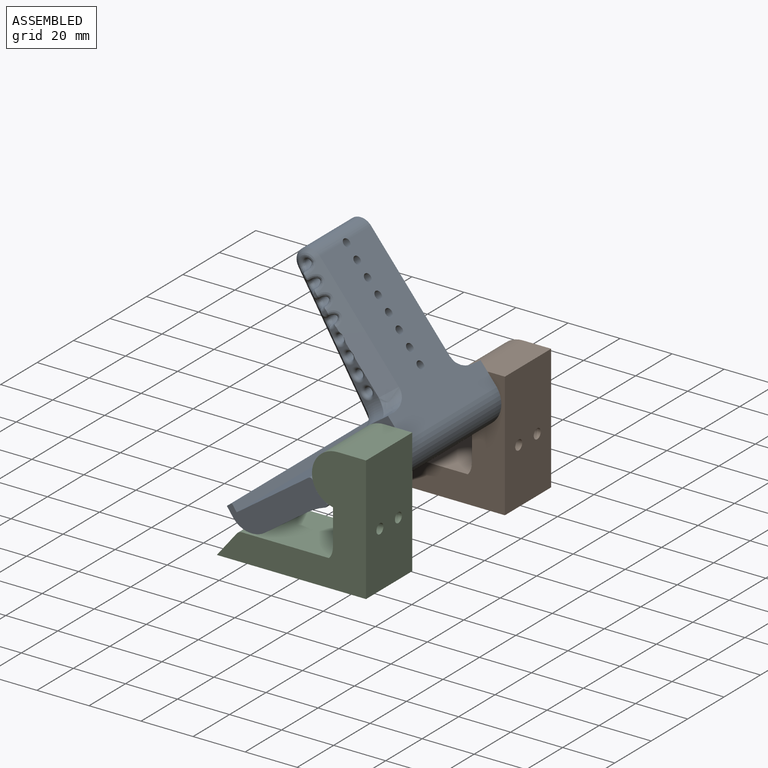
[diagram: assembled view]
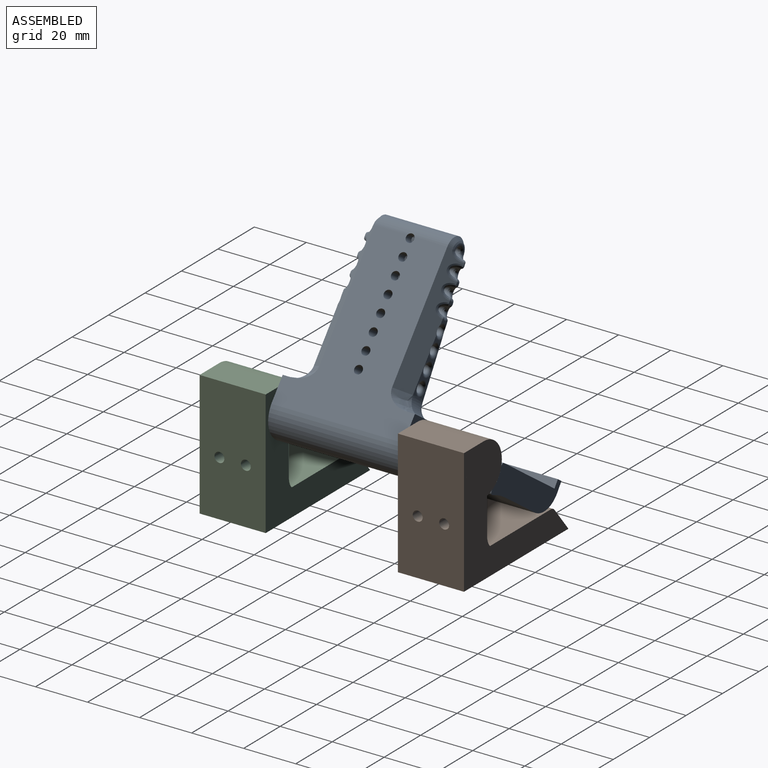
[diagram: assembled view, second angle]
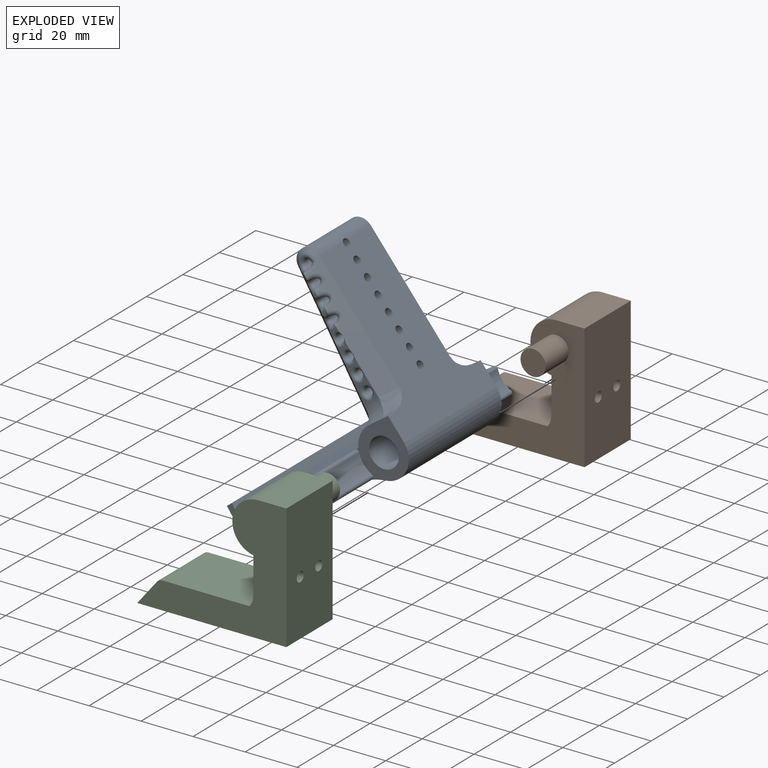
[diagram: exploded view]
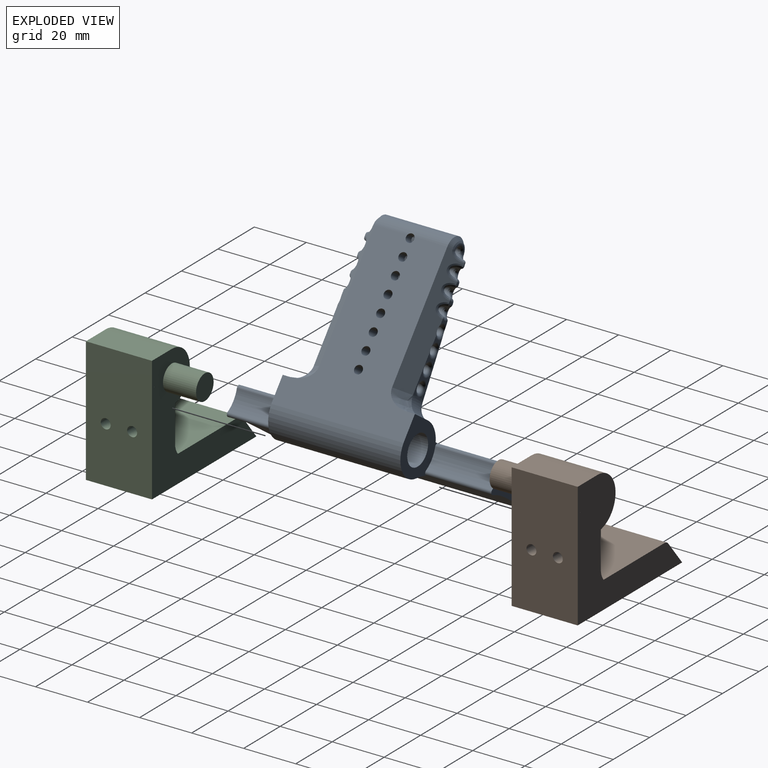
[diagram: exploded view, second angle]
ASSEMBLY  parts=3 mates=2
PART A: 124 faces, bbox 63.6x80.5x104 mm
  f0: plane 101.6x20.06mm, normal (0,-1,0), area 2037.7mm2, adj f2,f7,f33,f119
  f1: plane 66.22x53.17mm, normal (1,0.07,0), area 1975mm2, adj f3,f5,f28,f35,f39,f40,f41,f42
  f2: plane 37.74x14mm, normal (0,0,1), area 350.8mm2, adj f0,f29,f30,f31,f32,f33,f114,f115
  f3: cylinder r=9.53mm len=50.8mm, axis (0,0,-1), area 1014mm2, adj f1,f113,f117,f119
  f4: cylinder r=5.71mm len=50.8mm, axis (0,0,-1), area 1824.1mm2, adj f113,f117
  f5: plane 2.9x2.89mm, normal (0,1,0), area 4.2mm2, adj f1,f100,f117
  f6: cylinder r=9.91mm len=7.33mm, axis (0,0,-1), area 24.1mm2, adj f29,f98,f117
  f7: plane 37.74x14mm, normal (0,0,-1), area 350.8mm2, adj f0,f29,f30,f31,f32,f33,f110,f111
  f8: plane 4.35x2.65mm, normal (0,0,1), area 5mm2, adj f50,f52,f92,f93
  f9: plane 3.38x1.72mm, normal (0,0,1), area 3.1mm2, adj f50,f52,f63,f64,f66,f93
  f10: plane 14.53x6.91mm, normal (0,0,-1), area 26.9mm2, adj f47,f49,f94,f95,f96,f105,f108
  f11: plane 4.35x2.65mm, normal (0,0,-1), area 5mm2, adj f47,f49,f96,f97
  f12: plane 14.53x6.91mm, normal (0,0,1), area 26.9mm2, adj f50,f52,f90,f91,f92,f99,f102
  f13: plane 2.37x1.15mm, normal (0,0,1), area 1.8mm2, adj f50,f52,f63,f65,f66,f71,f72,f74
  f14: plane 1.43x0.82mm, normal (0,0,1), area 1mm2, adj f50,f52,f71,f73,f74,f78,f79
  f15: plane 2.24x0.64mm, normal (0,0,-1), area 0.8mm2, adj f47,f49,f57,f58,f75,f77
  f16: plane 1.43x0.82mm, normal (0,0,-1), area 1mm2, adj f47,f49,f67,f68,f70,f75,f76
  f17: plane 2.37x1.15mm, normal (0,0,-1), area 1.8mm2, adj f47,f49,f59,f60,f62,f67,f69,f70
  f18: plane 47.32x27.94mm, normal (-1,0.08,0), area 1133.4mm2, adj f28,f47,f50,f81,f83,f84,f85,f86
  f19: cylinder r=1.59mm len=17.46mm, axis (0,0,-1), area 142.6mm2, adj f38,f39,f53,f54,f55
  f20: cylinder r=1.59mm len=17.46mm, axis (0,0,-1), area 142.6mm2, adj f38,f39,f56,f57,f58
  f21: cylinder r=1.59mm len=35.56mm, axis (0,0,-1), area 297mm2, adj f46,f75,f76,f77,f78,f79,f80
  f22: cylinder r=1.59mm len=35.56mm, axis (0,0,-1), area 305.8mm2, adj f45,f67,f68,f69,f70,f71,f72,f73
  f23: cylinder r=1.59mm len=35.56mm, axis (0,0,-1), area 313.9mm2, adj f44,f59,f60,f61,f62,f63,f64,f65
  f24: cylinder r=1.59mm len=35.56mm, axis (0,0,-1), area 336.5mm2, adj f43,f93,f97
  f25: cylinder r=1.59mm len=35.56mm, axis (0,0,-1), area 336.7mm2, adj f42,f92,f96
  f26: cylinder r=1.59mm len=35.56mm, axis (0,0,-1), area 336.9mm2, adj f41,f91,f95
  f27: cylinder r=1.59mm len=35.56mm, axis (0,0,-1), area 334.4mm2, adj f40,f90,f94
  f28: cylinder r=5.08mm len=27.94mm, axis (0,0,-1), area 404.8mm2, adj f1,f18,f39,f48,f51,f82
  f29: plane 101.95x35.75mm, normal (0,1,0), area 3297.5mm2, adj f2,f6,f7,f30,f34,f47,f50,f98
  f30: plane 101.6x3.18mm, normal (1,0,0), area 322.6mm2, adj f2,f7,f29,f31
  f31: plane 101.6x2.39mm, normal (0,1,0), area 242.6mm2, adj f2,f7,f30,f32
  f32: plane 101.6x3.94mm, normal (-1,0,0), area 400mm2, adj f2,f7,f31,f33
  f33: cylinder r=8.89mm len=101.6mm, axis (0,0,-1), area 1418.8mm2, adj f0,f2,f7,f32
  f34: cylinder r=9.91mm len=7.33mm, axis (0,0,-1), area 24.1mm2, adj f29,f109,f113
  f35: plane 2.9x2.89mm, normal (0,1,0), area 4.2mm2, adj f1,f104,f113
  f36: plane 3.38x1.72mm, normal (0,0,-1), area 3.1mm2, adj f47,f49,f59,f61,f62,f97
  f37: plane 2.24x0.64mm, normal (0,0,1), area 0.8mm2, adj f50,f52,f53,f55,f79,f80
  f38: cylinder r=1.59mm len=4.04mm, axis (-1,0.08,0), area 27mm2, adj f19,f20,f81,f82
  f39: cylinder r=1.59mm len=5.59mm, axis (-1,0.08,0), area 41.2mm2, adj f1,f19,f20,f28
  f40: cylinder r=1.59mm len=15.41mm, axis (-1,0.08,0), area 132mm2, adj f1,f27,f89
  f41: cylinder r=1.59mm len=14.49mm, axis (-1,0.08,0), area 122.8mm2, adj f1,f26,f88
  f42: cylinder r=1.59mm len=13.56mm, axis (-1,0.08,0), area 113.6mm2, adj f1,f25,f87
  f43: cylinder r=1.59mm len=12.63mm, axis (-1,0.08,0), area 104.3mm2, adj f1,f24,f86
  f44: cylinder r=1.59mm len=11.71mm, axis (-1,0.08,0), area 95.1mm2, adj f1,f23,f85
  f45: cylinder r=1.59mm len=10.78mm, axis (-1,0.08,0), area 86mm2, adj f1,f22,f84
  f46: cylinder r=1.59mm len=9.85mm, axis (-1,0.08,0), area 76.4mm2, adj f1,f21,f83
  f47: plane 59.06x21.11mm, normal (-0.71,0.05,-0.71), area 347.3mm2, adj f10,f11,f15,f16,f17,f18,f29,f36
  f48: bspline ~10.13x5.13mm, area 24.8mm2, adj f28,f47,f49,f56
  f49: bspline ~64.07x9.57mm, area 275.2mm2, adj f1,f10,f11,f15,f16,f17,f36,f48
  f50: plane 59.06x21.11mm, normal (-0.71,0.05,0.71), area 347.3mm2, adj f8,f9,f12,f13,f14,f18,f29,f37
  f51: bspline ~10.13x5.13mm, area 24.8mm2, adj f28,f50,f52,f54
  f52: bspline ~64.07x9.57mm, area 275.2mm2, adj f1,f8,f9,f12,f13,f14,f37,f51
  f53: bspline ~4.83x4.24mm, area 12mm2, adj f19,f37,f50,f54,f55
  f54: bspline ~7.51x3.77mm, area 22.2mm2, adj f19,f51,f53,f55
  f55: bspline ~5.4x4.57mm, area 12mm2, adj f19,f37,f52,f53,f54
  f56: bspline ~7.51x3.77mm, area 22.2mm2, adj f20,f48,f57,f58
  f57: bspline ~4.96x4.32mm, area 12mm2, adj f15,f20,f47,f56,f58
  f58: bspline ~5.4x4.57mm, area 12mm2, adj f15,f20,f49,f56,f57
  f59: bspline ~5.6x3.58mm, area 17.3mm2, adj f17,f23,f36,f47,f60,f61
  f60: torus R=2.86mm, axis (0,0,1), area 3.2mm2, adj f17,f23,f59,f62
  f61: torus R=2.86mm, axis (0,0,1), area 4.3mm2, adj f23,f36,f59,f62
  f62: bspline ~5.72x3.8mm, area 17.9mm2, adj f17,f23,f36,f49,f60,f61
  f63: bspline ~5.6x3.58mm, area 17.3mm2, adj f9,f13,f23,f50,f64,f65
  f64: torus R=2.86mm, axis (0,0,1), area 4.3mm2, adj f9,f23,f63,f66
  f65: torus R=2.86mm, axis (0,0,1), area 3.2mm2, adj f13,f23,f63,f66
  f66: bspline ~5.71x3.82mm, area 17.9mm2, adj f9,f13,f23,f52,f64,f65
  f67: bspline ~5.7x3.85mm, area 19.8mm2, adj f16,f17,f22,f47,f68,f69
  f68: torus R=2.86mm, axis (0,0,1), area 1.8mm2, adj f16,f22,f67,f70
  f69: torus R=2.86mm, axis (0,0,1), area 3mm2, adj f17,f22,f67,f70
  f70: bspline ~5.73x4.34mm, area 20.2mm2, adj f16,f17,f22,f49,f68,f69
  f71: bspline ~5.7x3.85mm, area 19.8mm2, adj f13,f14,f22,f50,f72,f73
  f72: torus R=2.86mm, axis (0,0,1), area 3mm2, adj f13,f22,f71,f74
  f73: torus R=2.86mm, axis (0,0,1), area 1.8mm2, adj f14,f22,f71,f74
  f74: bspline ~5.73x4.34mm, area 20.2mm2, adj f13,f14,f22,f52,f72,f73
  f75: bspline ~5.71x4.42mm, area 22.2mm2, adj f15,f16,f21,f47,f76,f77
  f76: torus R=2.86mm, axis (0,0,1), area 1.7mm2, adj f16,f21,f75,f77
  f77: bspline ~5.73x5mm, area 22.1mm2, adj f15,f21,f49,f75,f76
  f78: torus R=2.86mm, axis (0,0,1), area 1.7mm2, adj f14,f21,f79,f80
  f79: bspline ~5.71x4.42mm, area 22.2mm2, adj f14,f21,f37,f50,f78,f80
  f80: bspline ~5.72x5mm, area 22.1mm2, adj f21,f37,f52,f78,f79
  f81: torus R=2.86mm, axis (1,-0.08,0), area 12.8mm2, adj f18,f38,f82
  f82: bspline ~5.72x4.41mm, area 18.6mm2, adj f28,f38,f81
  f83: torus R=2.86mm, axis (1,-0.08,0), area 25.7mm2, adj f18,f46
  f84: torus R=2.86mm, axis (1,-0.08,0), area 25.7mm2, adj f18,f45
  f85: torus R=2.86mm, axis (1,-0.08,0), area 25.7mm2, adj f18,f44
  f86: torus R=2.86mm, axis (1,-0.08,0), area 25.7mm2, adj f18,f43
  f87: torus R=2.86mm, axis (1,-0.08,0), area 25.7mm2, adj f18,f42
  f88: torus R=2.86mm, axis (1,-0.08,0), area 25.7mm2, adj f18,f41
  f89: torus R=2.86mm, axis (1,-0.08,0), area 25.7mm2, adj f18,f40
  f90: torus R=2.86mm, axis (0,0,1), area 25.7mm2, adj f12,f27,f101,f103
  f91: torus R=2.86mm, axis (0,0,1), area 25.4mm2, adj f12,f26,f52
  f92: torus R=2.86mm, axis (0,0,1), area 23.6mm2, adj f8,f12,f25,f50,f52
  f93: torus R=2.86mm, axis (0,0,1), area 20.8mm2, adj f8,f9,f24,f50,f52
  f94: torus R=2.86mm, axis (0,0,1), area 25.7mm2, adj f10,f27,f106,f107
  f95: torus R=2.86mm, axis (0,0,1), area 25.4mm2, adj f10,f26,f49
  f96: torus R=2.86mm, axis (0,0,1), area 23.6mm2, adj f10,f11,f25,f47,f49
  f97: torus R=2.86mm, axis (0,0,1), area 20.8mm2, adj f11,f24,f36,f47,f49
  f98: bspline ~12.82x11.49mm, area 73.8mm2, adj f6,f29,f50,f99
  f99: torus R=16.26mm, axis (0,0,1), area 29.5mm2, adj f12,f50,f98,f101,f117
  f100: bspline ~15.5x15.48mm, area 54.6mm2, adj f1,f5,f52,f102
  f101: bspline ~6.67x6.65mm, area 4.1mm2, adj f90,f99,f103,f117
  f102: cylinder r=6.35mm len=6.35mm, axis (-1,0,0), area 36.5mm2, adj f12,f52,f100,f103,f117
  f103: bspline ~6.35x6.35mm, area 6mm2, adj f90,f101,f102,f117
  f104: bspline ~15.5x15.48mm, area 54.6mm2, adj f1,f35,f49,f105
  f105: cylinder r=6.35mm len=6.35mm, axis (1,0,0), area 36.5mm2, adj f10,f49,f104,f106,f113
  f106: bspline ~6.35x6.35mm, area 6mm2, adj f94,f105,f107,f113
  f107: bspline ~6.54x6.53mm, area 4.1mm2, adj f94,f106,f108,f113
  f108: torus R=16.26mm, axis (0,0,1), area 29.5mm2, adj f10,f47,f107,f109,f113
  f109: bspline ~12.82x11.49mm, area 73.8mm2, adj f29,f34,f47,f108
  f110: cylinder r=9.91mm len=25.4mm, axis (0,0,-1), area 51.6mm2, adj f7,f111,f113,f122
  f111: plane 25.4x1.49mm, normal (1,-0.08,0), area 38mm2, adj f7,f110,f112,f113
  f112: cylinder r=9.91mm len=25.4mm, axis (0,0,-1), area 119.1mm2, adj f7,f111,f113,f121
  f113: plane 19.77x19.44mm, normal (0,0,-1), area 213.5mm2, adj f1,f3,f4,f29,f34,f35,f105,f106
  f114: cylinder r=9.91mm len=25.4mm, axis (0,0,-1), area 51.6mm2, adj f2,f115,f117,f123
  f115: plane 25.4x1.49mm, normal (1,-0.08,0), area 38mm2, adj f2,f114,f116,f117
  f116: cylinder r=9.91mm len=25.4mm, axis (0,0,-1), area 119.1mm2, adj f2,f115,f117,f120
  f117: plane 19.77x19.44mm, normal (0,0,1), area 213.5mm2, adj f1,f3,f4,f5,f6,f29,f99,f101
  f118: cylinder r=12.7mm len=27.94mm, axis (0,0,1), area 369.9mm2, adj f18,f29,f47,f50
  f119: cylinder r=25.4mm len=101.6mm, axis (0,0,-1), area 1062.7mm2, adj f0,f2,f3,f7,f113,f117,f120,f121
  f120: cylinder r=1.02mm len=25.4mm, axis (0,0,-1), area 60.5mm2, adj f2,f116,f117,f119
  f121: cylinder r=1.02mm len=25.4mm, axis (0,0,-1), area 60.5mm2, adj f7,f112,f113,f119
  f122: cylinder r=1.02mm len=25.4mm, axis (0,0,-1), area 49.7mm2, adj f7,f29,f110,f113
  f123: cylinder r=1.02mm len=25.4mm, axis (0,0,-1), area 49.7mm2, adj f2,f29,f114,f117
PART B: 19 faces, bbox 57.3x48.1x38.1 mm
  f0: cylinder r=9.91mm len=25.4mm, axis (0,0,-1), area 348.6mm2, adj f5,f7,f8,f16
  f1: plane 25.4x1.32mm, normal (1,0.07,0), area 33.7mm2, adj f6,f7,f8
  f2: plane 48.13x25.4mm, normal (1,0,0), area 1199.8mm2, adj f3,f7,f8,f11,f17,f18
  f3: plane 25.4x10.88mm, normal (0,1,0), area 276.2mm2, adj f2,f4,f7,f8
  f4: cylinder r=9.91mm len=25.4mm, axis (0,0,-1), area 357.2mm2, adj f3,f5,f7,f8
  f5: plane 25.4x1.49mm, normal (-1,0.08,0), area 38mm2, adj f0,f4,f7,f8
  f6: cylinder r=9.53mm len=25.4mm, axis (0,0,-1), area 33.7mm2, adj f1,f7,f8
  f7: plane 57.32x48.13mm, normal (0,0,1), area 1079.1mm2, adj f0,f1,f2,f3,f4,f5,f6,f9
  f8: plane 57.32x48.13mm, normal (0,0,-1), area 1152.3mm2, adj f0,f1,f2,f3,f4,f5,f6,f11
  f9: cylinder r=4.83mm len=12.7mm, axis (0,0,-1), area 385.1mm2, adj f7,f10
  f10: plane 9.65x9.65mm, normal (0,0,1), area 73.2mm2, adj f9
  f11: plane 57.32x25.4mm, normal (0,-1,0), area 1455.9mm2, adj f2,f7,f8,f12
  f12: plane 25.4x9.47mm, normal (-0.78,0.63,0), area 309mm2, adj f7,f8,f11,f13
  f13: cylinder r=2.54mm len=25.4mm, axis (0,0,-1), area 57.6mm2, adj f7,f8,f12,f14
  f14: plane 33.5x25.4mm, normal (0,1,0), area 850.8mm2, adj f7,f8,f13,f15
  f15: cylinder r=6.35mm len=25.4mm, axis (0,0,-1), area 113.7mm2, adj f7,f8,f14,f16
  f16: plane 25.4x13.96mm, normal (-1,0,0), area 331.7mm2, adj f0,f7,f8,f15,f17,f18
  f17: cylinder r=1.91mm len=12.7mm, axis (-1,0,0), area 152mm2, adj f2,f16
  f18: cylinder r=1.91mm len=12.7mm, axis (-1,0,0), area 152mm2, adj f2,f16
PART C: 19 faces, bbox 57.3x48.1x38.1 mm
  f0: cylinder r=9.91mm len=25.4mm, axis (0,0,-1), area 348.6mm2, adj f5,f7,f8,f14
  f1: plane 25.4x1.32mm, normal (1,0.07,0), area 33.7mm2, adj f6,f7,f8
  f2: plane 48.13x25.4mm, normal (1,0,0), area 1199.8mm2, adj f3,f7,f8,f9,f15,f16
  f3: plane 25.4x10.88mm, normal (0,1,0), area 276.2mm2, adj f2,f4,f7,f8
  f4: cylinder r=9.91mm len=25.4mm, axis (0,0,-1), area 357.2mm2, adj f3,f5,f7,f8
  f5: plane 25.4x1.49mm, normal (-1,0.08,0), area 38mm2, adj f0,f4,f7,f8
  f6: cylinder r=9.53mm len=25.4mm, axis (0,0,-1), area 33.7mm2, adj f1,f7,f8
  f7: plane 57.32x48.13mm, normal (0,0,1), area 1152.3mm2, adj f0,f1,f2,f3,f4,f5,f6,f9
  f8: plane 57.32x48.13mm, normal (0,0,-1), area 1079.1mm2, adj f0,f1,f2,f3,f4,f5,f6,f9
  f9: plane 57.32x25.4mm, normal (0,-1,0), area 1455.9mm2, adj f2,f7,f8,f10
  f10: plane 25.4x9.47mm, normal (-0.78,0.63,0), area 309mm2, adj f7,f8,f9,f11
  f11: cylinder r=2.54mm len=25.4mm, axis (0,0,-1), area 57.6mm2, adj f7,f8,f10,f12
  f12: plane 33.5x25.4mm, normal (0,1,0), area 850.8mm2, adj f7,f8,f11,f13
  f13: cylinder r=6.35mm len=25.4mm, axis (0,0,-1), area 113.7mm2, adj f7,f8,f12,f14
  f14: plane 25.4x13.96mm, normal (-1,0,0), area 331.7mm2, adj f0,f7,f8,f13,f15,f16
  f15: cylinder r=1.91mm len=12.7mm, axis (-1,0,0), area 152mm2, adj f2,f14
  f16: cylinder r=1.91mm len=12.7mm, axis (-1,0,0), area 152mm2, adj f2,f14
  f17: cylinder r=4.83mm len=12.7mm, axis (0,0,1), area 385.1mm2, adj f8,f18
  f18: plane 9.65x9.65mm, normal (0,0,-1), area 73.2mm2, adj f17
PLACE A rot(axis=(0.91,-0.29,0.29),95.2deg) t=(17.78,12.7,38.23)mm
PLACE B rot(axis=(1,0,0),90deg) t=(17.78,12.7,38.23)mm
PLACE C rot(axis=(1,0,0),90deg) t=(17.78,38.1,38.23)mm
MATE revolute B.f9 <-> A.f3  axis (0,-1,0) through (17.78,-12.7,38.23)mm
MATE revolute A.f4 <-> C.f17  axis (0,-1,0) through (17.78,-63.5,38.23)mm
